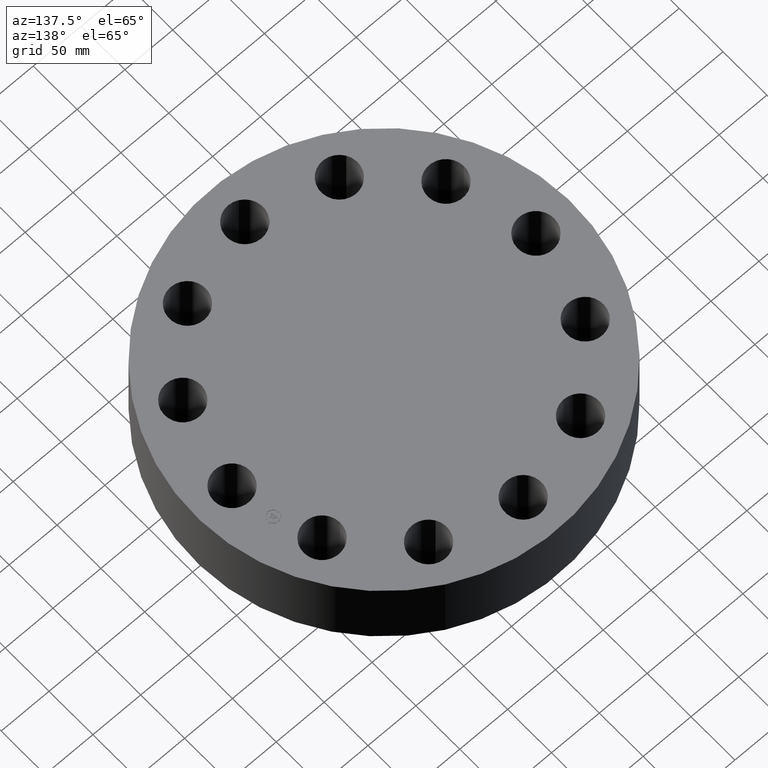
[diagram: clean part render]
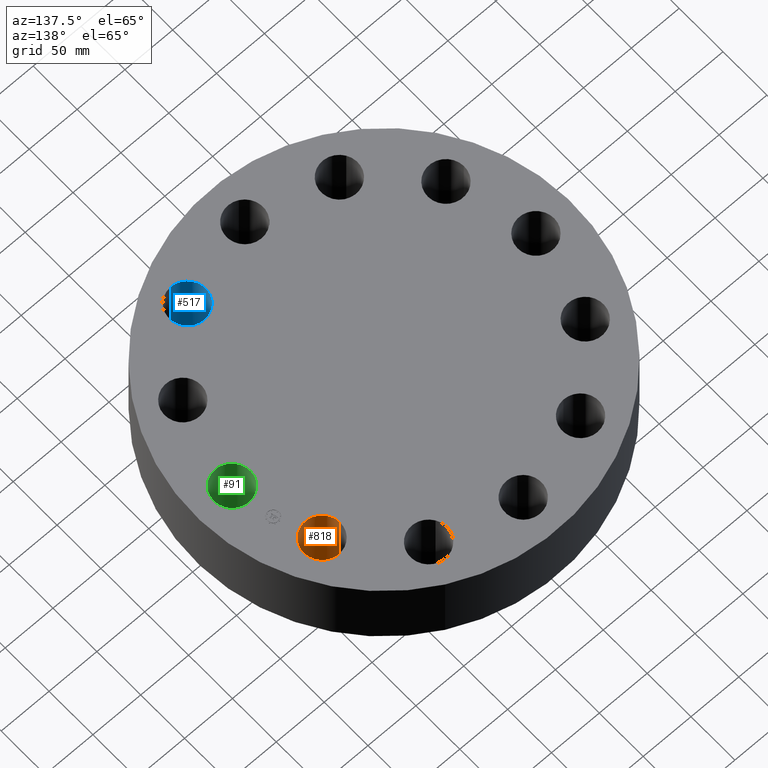
[diagram: same view with three faces highlighted in distinct colors, each labeled with its STEP entity id]
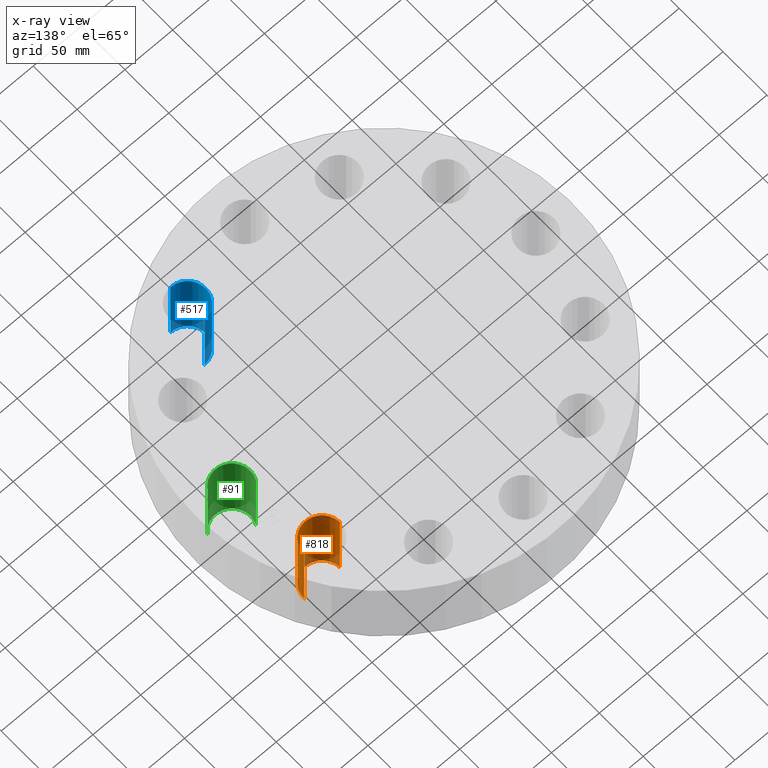
[diagram: x-ray of the same camera — body ghosted, the three highlighted faces saturated]
A machine part, auxiliary view with three faces highlighted in distinct colors.
The next image is the same camera in x-ray (body ghosted, the three faces saturated) — at least one of them is partly hidden behind the body in this view.
Their STEP definitions:

[orange] entity #818 — the highlighted cylindrical surface (edge-blend (fillet) strip) has radius 19.05 mm, axis along (0, 0, -1).
#424=AXIS2_PLACEMENT_3D('Circle Axis2P3D',#422,#423,$) ;
#779=AXIS2_PLACEMENT_3D('Cylinder Axis2P3D',#776,#777,#778) ;
#809=AXIS2_PLACEMENT_3D('Circle Axis2P3D',#807,#808,$) ;
#417=CARTESIAN_POINT('Vertex',(4.66286760231,3.10730256104,0.)) ;
#419=CARTESIAN_POINT('Vertex',(6.16244994504,3.14269743898,0.)) ;
#422=CARTESIAN_POINT('Axis2P3D Location',(5.41265877367,3.12500000001,0.)) ;
#776=CARTESIAN_POINT('Axis2P3D Location',(5.41265877367,3.12500000001,3.24606299214)) ;
#781=CARTESIAN_POINT('Line Origine',(4.66286760231,3.10730256104,1.62500000001)) ;
#785=CARTESIAN_POINT('Vertex',(4.66286760231,3.10730256104,3.25000000001)) ;
#788=CARTESIAN_POINT('Line Origine',(6.16244994504,3.14269743898,1.62500000001)) ;
#792=CARTESIAN_POINT('Vertex',(6.16244994504,3.14269743898,3.25000000001)) ;
#807=CARTESIAN_POINT('Axis2P3D Location',(5.41265877367,3.12500000001,3.25000000001)) ;
#423=DIRECTION('Axis2P3D Direction',(0.,0.,-0.0393700787402)) ;
#777=DIRECTION('Axis2P3D Direction',(0.,0.,-0.0393700787402)) ;
#778=DIRECTION('Axis2P3D XDirection',(0.039359116607,0.000928999420902,0.)) ;
#782=DIRECTION('Vector Direction',(0.,0.,-0.0393700787402)) ;
#789=DIRECTION('Vector Direction',(0.,0.,-0.0393700787402)) ;
#808=DIRECTION('Axis2P3D Direction',(0.,0.,-0.0393700787402)) ;
#783=VECTOR('Line Direction',#782,0.0393700787402) ;
#790=VECTOR('Line Direction',#789,0.0393700787402) ;
#813=ORIENTED_EDGE('',*,*,#794,.F.) ;
#814=ORIENTED_EDGE('',*,*,#426,.T.) ;
#815=ORIENTED_EDGE('',*,*,#787,.T.) ;
#816=ORIENTED_EDGE('',*,*,#811,.F.) ;
#818=ADVANCED_FACE('PartBody',(#817),#780,.F.) ;
#425=CIRCLE('generated circle',#424,0.750000000003) ;
#810=CIRCLE('generated circle',#809,0.750000000003) ;
#780=CYLINDRICAL_SURFACE('generated cylinder',#779,0.750000000003) ;
#426=EDGE_CURVE('',#420,#418,#425,.T.) ;
#787=EDGE_CURVE('',#418,#786,#784,.F.) ;
#794=EDGE_CURVE('',#420,#793,#791,.F.) ;
#811=EDGE_CURVE('',#793,#786,#810,.T.) ;
#812=EDGE_LOOP('',(#813,#814,#815,#816)) ;
#817=FACE_OUTER_BOUND('',#812,.T.) ;
#784=LINE('Line',#781,#783) ;
#791=LINE('Line',#788,#790) ;
#418=VERTEX_POINT('',#417) ;
#420=VERTEX_POINT('',#419) ;
#786=VERTEX_POINT('',#785) ;
#793=VERTEX_POINT('',#792) ;

[blue] entity #517 — the highlighted cylindrical surface (edge-blend (fillet) strip) has radius 19.05 mm, axis along (0, -0, -1).
#262=AXIS2_PLACEMENT_3D('Circle Axis2P3D',#260,#261,$) ;
#478=AXIS2_PLACEMENT_3D('Cylinder Axis2P3D',#475,#476,#477) ;
#508=AXIS2_PLACEMENT_3D('Circle Axis2P3D',#506,#507,$) ;
#255=CARTESIAN_POINT('Vertex',(3.10730256104,-4.66286760231,0.)) ;
#257=CARTESIAN_POINT('Vertex',(3.14269743898,-6.16244994504,0.)) ;
#260=CARTESIAN_POINT('Axis2P3D Location',(3.12500000001,-5.41265877367,0.)) ;
#475=CARTESIAN_POINT('Axis2P3D Location',(3.12500000001,-5.41265877367,3.24606299214)) ;
#480=CARTESIAN_POINT('Line Origine',(3.10730256104,-4.66286760231,1.62500000001)) ;
#484=CARTESIAN_POINT('Vertex',(3.10730256104,-4.66286760231,3.25000000001)) ;
#487=CARTESIAN_POINT('Line Origine',(3.14269743898,-6.16244994504,1.62500000001)) ;
#491=CARTESIAN_POINT('Vertex',(3.14269743898,-6.16244994504,3.25000000001)) ;
#506=CARTESIAN_POINT('Axis2P3D Location',(3.12500000001,-5.41265877367,3.25000000001)) ;
#261=DIRECTION('Axis2P3D Direction',(0.,0.,-0.0393700787402)) ;
#476=DIRECTION('Axis2P3D Direction',(0.,-0.,-0.0393700787402)) ;
#477=DIRECTION('Axis2P3D XDirection',(0.000928999420902,-0.039359116607,0.)) ;
#481=DIRECTION('Vector Direction',(0.,0.,-0.0393700787402)) ;
#488=DIRECTION('Vector Direction',(0.,0.,-0.0393700787402)) ;
#507=DIRECTION('Axis2P3D Direction',(0.,-0.,-0.0393700787402)) ;
#482=VECTOR('Line Direction',#481,0.0393700787402) ;
#489=VECTOR('Line Direction',#488,0.0393700787402) ;
#512=ORIENTED_EDGE('',*,*,#493,.F.) ;
#513=ORIENTED_EDGE('',*,*,#264,.T.) ;
#514=ORIENTED_EDGE('',*,*,#486,.T.) ;
#515=ORIENTED_EDGE('',*,*,#510,.F.) ;
#517=ADVANCED_FACE('PartBody',(#516),#479,.F.) ;
#263=CIRCLE('generated circle',#262,0.750000000003) ;
#509=CIRCLE('generated circle',#508,0.750000000003) ;
#479=CYLINDRICAL_SURFACE('generated cylinder',#478,0.750000000003) ;
#264=EDGE_CURVE('',#258,#256,#263,.T.) ;
#486=EDGE_CURVE('',#256,#485,#483,.F.) ;
#493=EDGE_CURVE('',#258,#492,#490,.F.) ;
#510=EDGE_CURVE('',#492,#485,#509,.T.) ;
#511=EDGE_LOOP('',(#512,#513,#514,#515)) ;
#516=FACE_OUTER_BOUND('',#511,.T.) ;
#483=LINE('Line',#480,#482) ;
#490=LINE('Line',#487,#489) ;
#256=VERTEX_POINT('',#255) ;
#258=VERTEX_POINT('',#257) ;
#485=VERTEX_POINT('',#484) ;
#492=VERTEX_POINT('',#491) ;

[green] entity #91 — the highlighted cylindrical surface (edge-blend (fillet) strip) has radius 19.05 mm, axis along (0, -0, -1).
#38=AXIS2_PLACEMENT_3D('Cylinder Axis2P3D',#35,#36,#37) ;
#77=AXIS2_PLACEMENT_3D('Circle Axis2P3D',#75,#76,$) ;
#82=AXIS2_PLACEMENT_3D('Circle Axis2P3D',#80,#81,$) ;
#35=CARTESIAN_POINT('Axis2P3D Location',(6.25000000003,0.,3.24606299214)) ;
#40=CARTESIAN_POINT('Line Origine',(5.5918130786,0.359569153955,1.62500000001)) ;
#44=CARTESIAN_POINT('Vertex',(5.5918130786,0.359569153955,0.)) ;
#46=CARTESIAN_POINT('Vertex',(5.5918130786,0.359569153955,3.25000000001)) ;
#53=CARTESIAN_POINT('Vertex',(6.90818692145,-0.359569153955,0.)) ;
#56=CARTESIAN_POINT('Line Origine',(6.90818692145,-0.359569153955,1.62500000001)) ;
#60=CARTESIAN_POINT('Vertex',(6.90818692145,-0.359569153955,3.25000000001)) ;
#75=CARTESIAN_POINT('Axis2P3D Location',(6.25000000003,0.,0.)) ;
#80=CARTESIAN_POINT('Axis2P3D Location',(6.25000000003,0.,3.25000000001)) ;
#36=DIRECTION('Axis2P3D Direction',(0.,-0.,-0.0393700787402)) ;
#37=DIRECTION('Axis2P3D XDirection',(0.0345504945626,-0.0188750212049,0.)) ;
#41=DIRECTION('Vector Direction',(0.,0.,-0.0393700787402)) ;
#57=DIRECTION('Vector Direction',(0.,0.,-0.0393700787402)) ;
#76=DIRECTION('Axis2P3D Direction',(0.,-0.,-0.0393700787402)) ;
#81=DIRECTION('Axis2P3D Direction',(0.,-0.,-0.0393700787402)) ;
#42=VECTOR('Line Direction',#41,0.0393700787402) ;
#58=VECTOR('Line Direction',#57,0.0393700787402) ;
#86=ORIENTED_EDGE('',*,*,#62,.F.) ;
#87=ORIENTED_EDGE('',*,*,#79,.T.) ;
#88=ORIENTED_EDGE('',*,*,#48,.T.) ;
#89=ORIENTED_EDGE('',*,*,#84,.F.) ;
#91=ADVANCED_FACE('PartBody',(#90),#39,.F.) ;
#78=CIRCLE('generated circle',#77,0.750000000003) ;
#83=CIRCLE('generated circle',#82,0.750000000003) ;
#39=CYLINDRICAL_SURFACE('generated cylinder',#38,0.750000000003) ;
#48=EDGE_CURVE('',#45,#47,#43,.F.) ;
#62=EDGE_CURVE('',#54,#61,#59,.F.) ;
#79=EDGE_CURVE('',#54,#45,#78,.T.) ;
#84=EDGE_CURVE('',#61,#47,#83,.T.) ;
#85=EDGE_LOOP('',(#86,#87,#88,#89)) ;
#90=FACE_OUTER_BOUND('',#85,.T.) ;
#43=LINE('Line',#40,#42) ;
#59=LINE('Line',#56,#58) ;
#45=VERTEX_POINT('',#44) ;
#47=VERTEX_POINT('',#46) ;
#54=VERTEX_POINT('',#53) ;
#61=VERTEX_POINT('',#60) ;